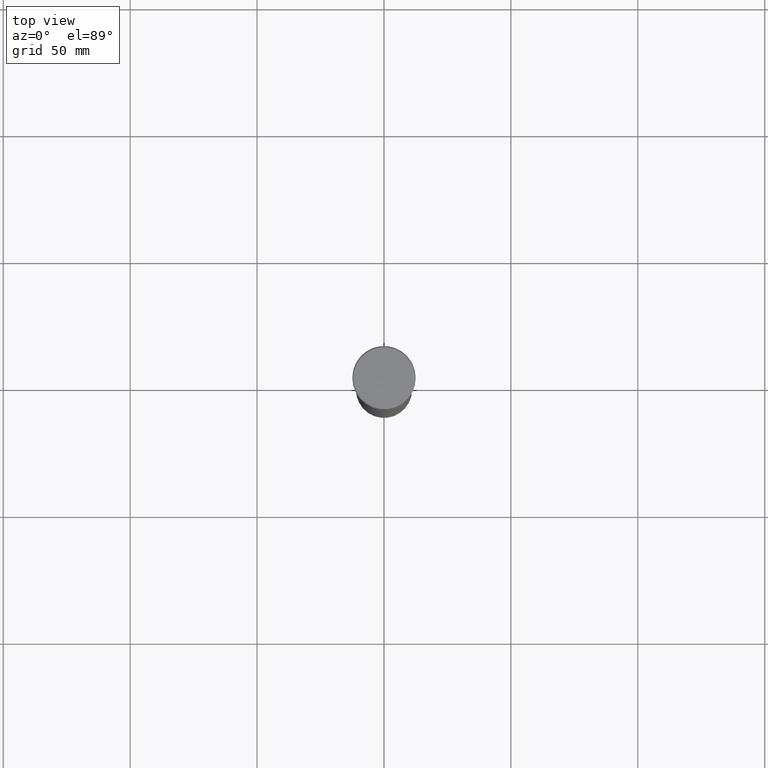
[diagram: clean part render]
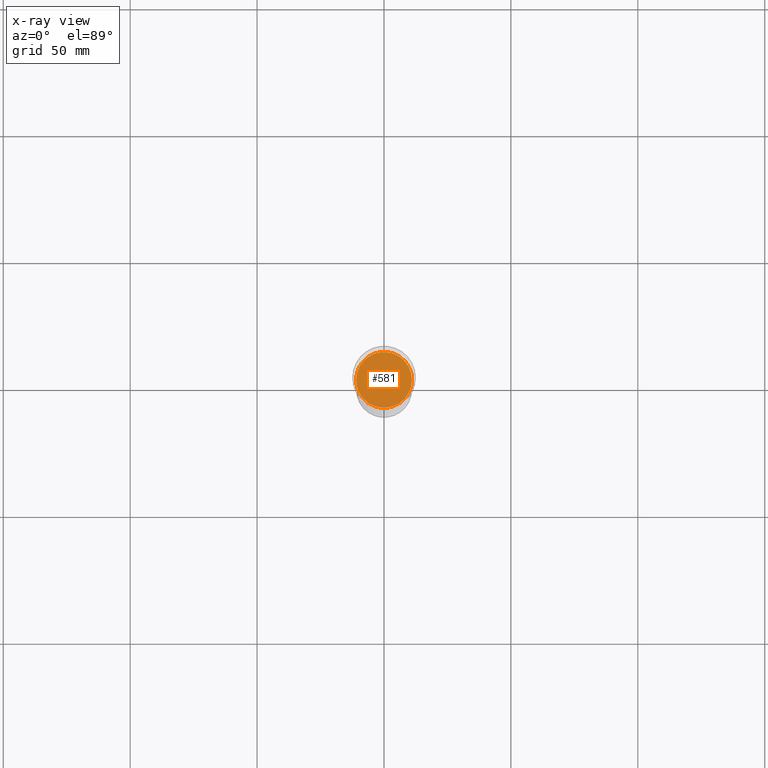
[diagram: x-ray — body ghosted, one internal face saturated and labeled with its STEP entity id]
A machine part, top view, then the same camera in x-ray: the body is ghosted and one INTERNAL B-rep face — a face not visible from any outside direction — is saturated and labeled: STEP entity #581.
In plain terms, the highlighted planar face has unit normal (0, 0, -1).
Its self-contained STEP definition (entity closure, byte-faithful):
#37 = PLANE ( 'NONE',  #196 ) ;
#77 = VERTEX_POINT ( 'NONE', #654 ) ;
#81 = VERTEX_POINT ( 'NONE', #390 ) ;
#146 = EDGE_CURVE ( 'NONE', #77, #81, #346, .T. ) ;
#196 = AXIS2_PLACEMENT_3D ( 'NONE', #229, #303, #851 ) ;
#229 = CARTESIAN_POINT ( 'NONE',  ( 0.000000000000000000, 0.000000000000000000, -52.00000000000000000 ) ) ;
#252 = DIRECTION ( 'NONE',  ( -1.000000000000000000, 0.000000000000000000, 0.000000000000000000 ) ) ;
#303 = DIRECTION ( 'NONE',  ( 0.000000000000000000, 0.000000000000000000, -1.000000000000000000 ) ) ;
#341 = CARTESIAN_POINT ( 'NONE',  ( 0.000000000000000000, 0.000000000000000000, -52.00000000000000000 ) ) ;
#346 = CIRCLE ( 'NONE', #990, 11.00000000000000000 ) ;
#390 = CARTESIAN_POINT ( 'NONE',  ( 11.00000000000000000, 0.000000000000000000, -52.00000000000000000 ) ) ;
#581 = ADVANCED_FACE ( 'NONE', ( #1083 ), #37, .T. ) ;
#604 = ORIENTED_EDGE ( 'NONE', *, *, #1071, .T. ) ;
#654 = CARTESIAN_POINT ( 'NONE',  ( -11.00000000000000000, 1.347111479062088405E-15, -52.00000000000000000 ) ) ;
#851 = DIRECTION ( 'NONE',  ( -1.000000000000000000, 0.000000000000000000, -0.000000000000000000 ) ) ;
#942 = DIRECTION ( 'NONE',  ( -1.000000000000000000, 0.000000000000000000, 0.000000000000000000 ) ) ;
#957 = CARTESIAN_POINT ( 'NONE',  ( 0.000000000000000000, 0.000000000000000000, -52.00000000000000000 ) ) ;
#963 = EDGE_LOOP ( 'NONE', ( #604, #980 ) ) ;
#980 = ORIENTED_EDGE ( 'NONE', *, *, #146, .T. ) ;
#990 = AXIS2_PLACEMENT_3D ( 'NONE', #957, #1034, #252 ) ;
#993 = AXIS2_PLACEMENT_3D ( 'NONE', #341, #1120, #942 ) ;
#1012 = CIRCLE ( 'NONE', #993, 11.00000000000000000 ) ;
#1034 = DIRECTION ( 'NONE',  ( 0.000000000000000000, 0.000000000000000000, -1.000000000000000000 ) ) ;
#1071 = EDGE_CURVE ( 'NONE', #81, #77, #1012, .T. ) ;
#1083 = FACE_OUTER_BOUND ( 'NONE', #963, .T. ) ;
#1120 = DIRECTION ( 'NONE',  ( 0.000000000000000000, 0.000000000000000000, -1.000000000000000000 ) ) ;